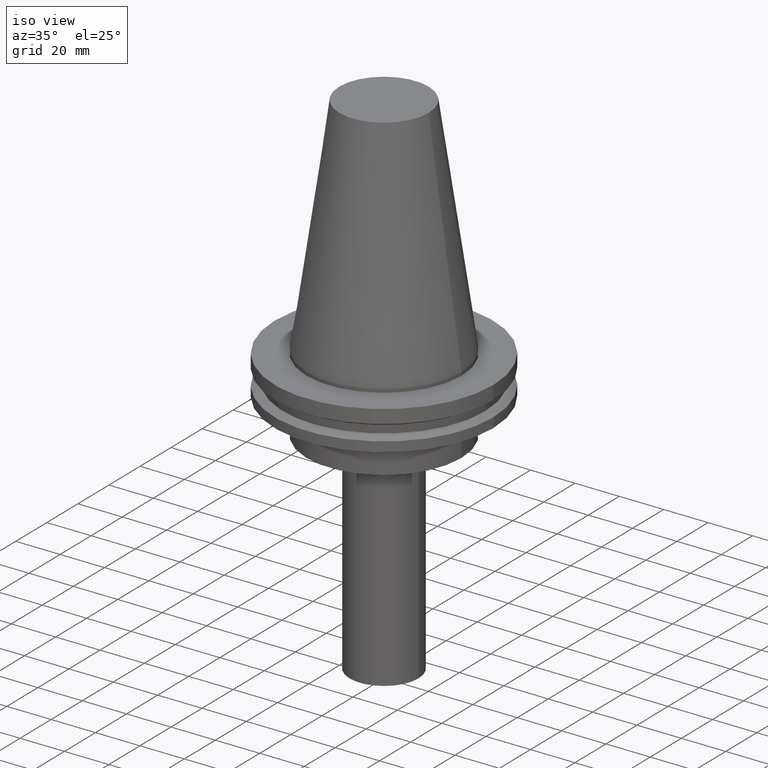
[diagram: clean part render]
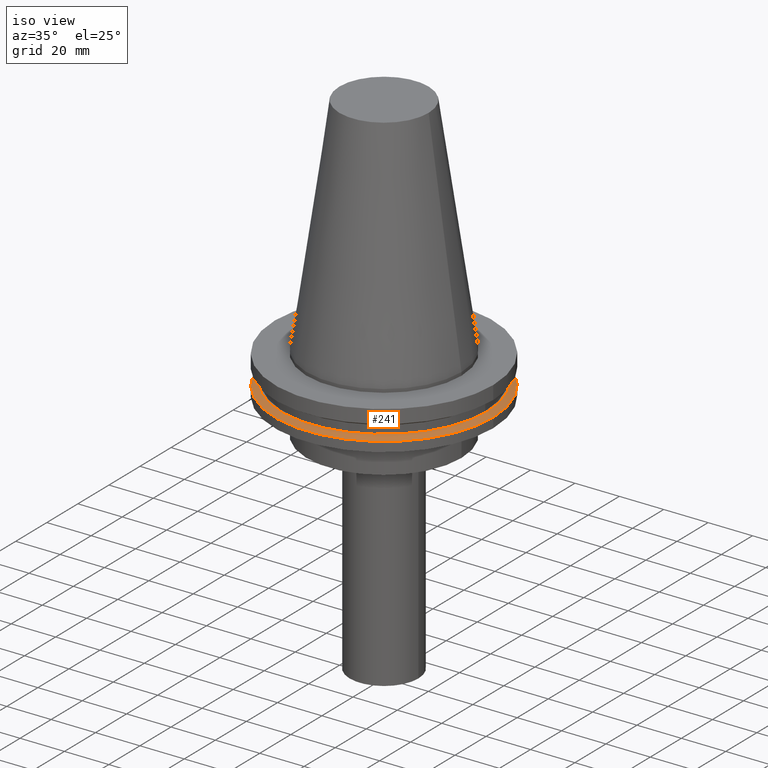
[diagram: same view with one face highlighted and labeled with its STEP entity id]
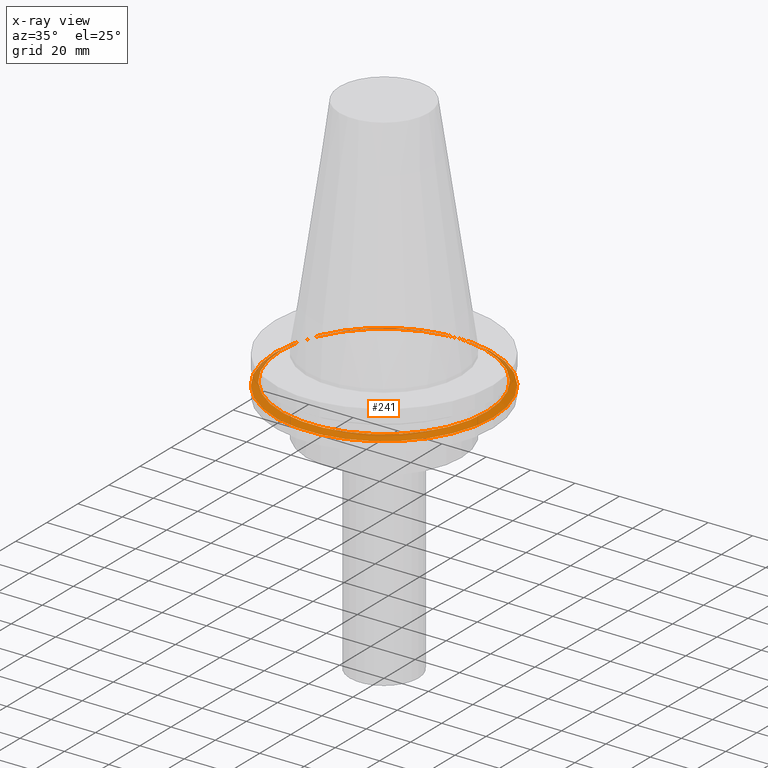
[diagram: x-ray of the same camera — body ghosted, the highlighted face saturated]
A machine part, iso view. The second image highlights one B-rep face of the part: STEP entity #241.
The next image is the same camera in x-ray: the body ghosted, the highlighted face saturated — about 8% of this face is hidden behind the body in this view.
In plain terms, the highlighted conical surface has half-angle 60 deg.
Its self-contained STEP definition (entity closure, byte-faithful):
#5 = AXIS2_PLACEMENT_3D ( 'NONE', #214, #336, #10 ) ;
#6 = AXIS2_PLACEMENT_3D ( 'NONE', #280, #367, #250 ) ;
#10 = DIRECTION ( 'NONE',  ( 1.000000000000000000, 0.000000000000000000, 0.000000000000000000 ) ) ;
#12 = FACE_BOUND ( 'NONE', #355, .T. ) ;
#38 = ORIENTED_EDGE ( 'NONE', *, *, #289, .T. ) ;
#69 = VERTEX_POINT ( 'NONE', #284 ) ;
#141 = CONICAL_SURFACE ( 'NONE', #294, 49.21499999999998920, 1.047197551196554333 ) ;
#167 = ORIENTED_EDGE ( 'NONE', *, *, #233, .F. ) ;
#171 = CIRCLE ( 'NONE', #5, 46.43919780457007818 ) ;
#214 = CARTESIAN_POINT ( 'NONE',  ( 0.000000000000000000, 0.000000000000000000, -13.05499999999999794 ) ) ;
#233 = EDGE_CURVE ( 'NONE', #345, #345, #171, .T. ) ;
#241 = ADVANCED_FACE ( 'NONE', ( #12, #369 ), #141, .T. ) ;
#243 = CIRCLE ( 'NONE', #6, 49.21499999999998920 ) ;
#250 = DIRECTION ( 'NONE',  ( 1.000000000000000000, 0.000000000000000000, 0.000000000000000000 ) ) ;
#255 = CARTESIAN_POINT ( 'NONE',  ( 0.000000000000000000, 0.000000000000000000, -14.65761014474876944 ) ) ;
#280 = CARTESIAN_POINT ( 'NONE',  ( 0.000000000000000000, 0.000000000000000000, -14.65761014474876944 ) ) ;
#284 = CARTESIAN_POINT ( 'NONE',  ( 49.21499999999998920, 0.000000000000000000, -14.65761014474876944 ) ) ;
#289 = EDGE_CURVE ( 'NONE', #69, #69, #243, .T. ) ;
#291 = EDGE_LOOP ( 'NONE', ( #38 ) ) ;
#294 = AXIS2_PLACEMENT_3D ( 'NONE', #255, #374, #340 ) ;
#335 = CARTESIAN_POINT ( 'NONE',  ( 46.43919780457007818, 0.000000000000000000, -13.05499999999999794 ) ) ;
#336 = DIRECTION ( 'NONE',  ( -0.000000000000000000, -0.000000000000000000, 1.000000000000000000 ) ) ;
#340 = DIRECTION ( 'NONE',  ( -1.000000000000000000, 0.000000000000000000, 0.000000000000000000 ) ) ;
#345 = VERTEX_POINT ( 'NONE', #335 ) ;
#355 = EDGE_LOOP ( 'NONE', ( #167 ) ) ;
#367 = DIRECTION ( 'NONE',  ( -0.000000000000000000, -0.000000000000000000, 1.000000000000000000 ) ) ;
#369 = FACE_OUTER_BOUND ( 'NONE', #291, .T. ) ;
#374 = DIRECTION ( 'NONE',  ( 0.000000000000000000, 0.000000000000000000, -1.000000000000000000 ) ) ;